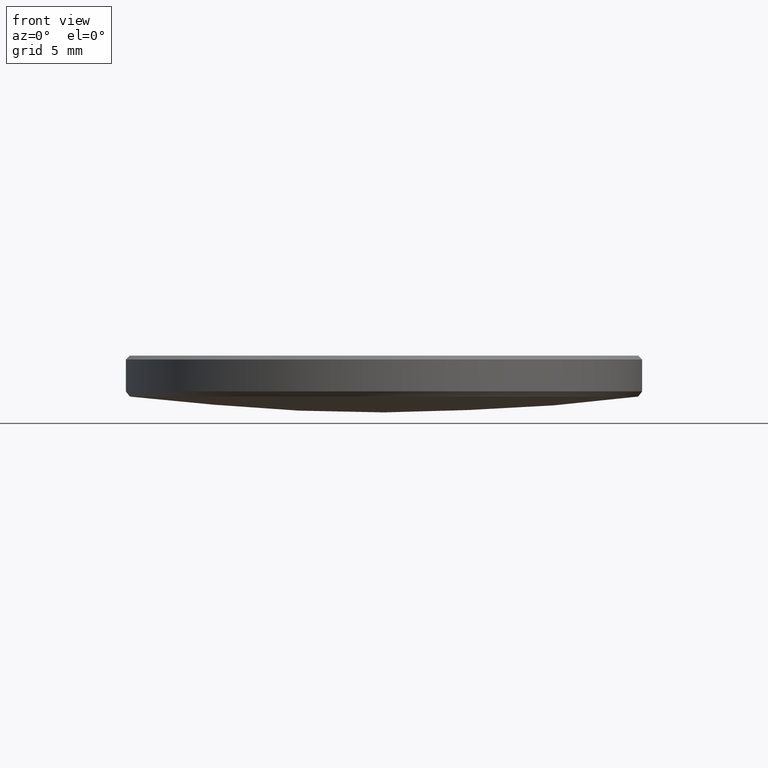
[diagram: clean part render]
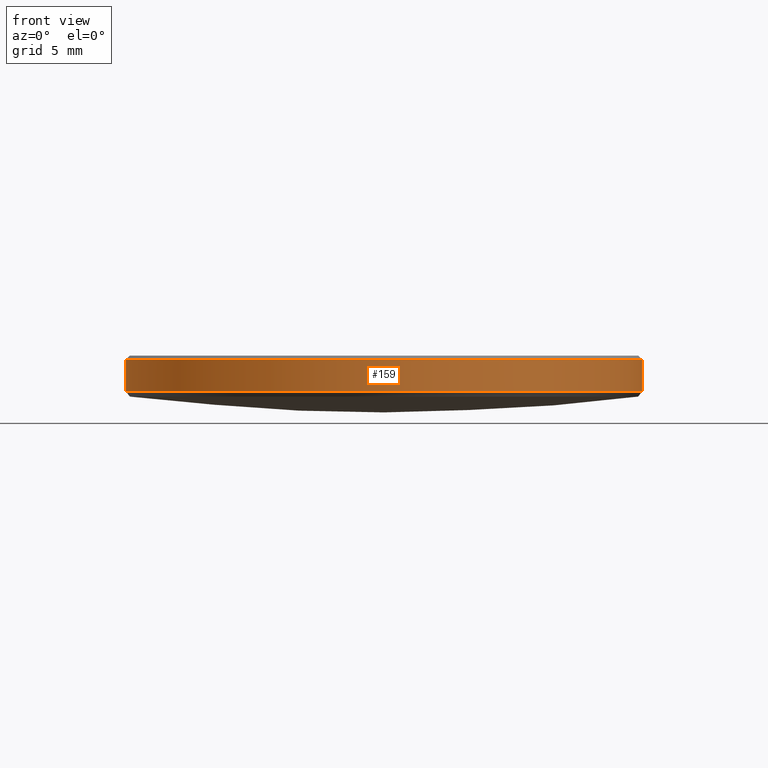
[diagram: same view with one face highlighted and labeled with its STEP entity id]
A machine part, front view. The second image highlights one B-rep face of the part: STEP entity #159.
In plain terms, the highlighted cylindrical surface (partial cylindrical patch) has radius 12.7 mm, axis along (-0, -0, -1).
Its self-contained STEP definition (entity closure, byte-faithful):
#3 = CARTESIAN_POINT ( 'NONE',  ( 12.69999999999999929, 1.555301434917138433E-15, 4.230902662384877999 ) ) ;
#7 = AXIS2_PLACEMENT_3D ( 'NONE', #263, #309, #165 ) ;
#10 = EDGE_LOOP ( 'NONE', ( #164, #255, #160, #68 ) ) ;
#16 = LINE ( 'NONE', #249, #227 ) ;
#36 = DIRECTION ( 'NONE',  ( -0.000000000000000000, -0.000000000000000000, -1.000000000000000000 ) ) ;
#45 = AXIS2_PLACEMENT_3D ( 'NONE', #196, #304, #228 ) ;
#47 = CARTESIAN_POINT ( 'NONE',  ( -12.69999999999999929, 0.000000000000000000, 4.230902662384877999 ) ) ;
#60 = CARTESIAN_POINT ( 'NONE',  ( -12.69999999999999929, 0.000000000000000000, 10.00000000000000000 ) ) ;
#62 = DIRECTION ( 'NONE',  ( -1.000000000000000000, 0.000000000000000000, 0.000000000000000000 ) ) ;
#66 = CARTESIAN_POINT ( 'NONE',  ( 0.000000000000000000, 0.000000000000000000, 4.230902662384877999 ) ) ;
#68 = ORIENTED_EDGE ( 'NONE', *, *, #174, .T. ) ;
#71 = VERTEX_POINT ( 'NONE', #124 ) ;
#76 = CIRCLE ( 'NONE', #45, 12.69999999999999929 ) ;
#112 = LINE ( 'NONE', #60, #272 ) ;
#118 = EDGE_CURVE ( 'NONE', #71, #187, #16, .T. ) ;
#124 = CARTESIAN_POINT ( 'NONE',  ( 12.69999999999999929, 1.555301434917138433E-15, 5.800000000000027356 ) ) ;
#133 = CYLINDRICAL_SURFACE ( 'NONE', #7, 12.69999999999999929 ) ;
#141 = AXIS2_PLACEMENT_3D ( 'NONE', #66, #312, #62 ) ;
#154 = CARTESIAN_POINT ( 'NONE',  ( -12.69999999999999929, 0.000000000000000000, 5.800000000000027356 ) ) ;
#159 = ADVANCED_FACE ( 'NONE', ( #232 ), #133, .T. ) ;
#160 = ORIENTED_EDGE ( 'NONE', *, *, #207, .T. ) ;
#164 = ORIENTED_EDGE ( 'NONE', *, *, #118, .F. ) ;
#165 = DIRECTION ( 'NONE',  ( -1.000000000000000000, 0.000000000000000000, 0.000000000000000000 ) ) ;
#174 = EDGE_CURVE ( 'NONE', #290, #187, #330, .T. ) ;
#187 = VERTEX_POINT ( 'NONE', #3 ) ;
#196 = CARTESIAN_POINT ( 'NONE',  ( 0.000000000000000000, 0.000000000000000000, 5.800000000000027356 ) ) ;
#207 = EDGE_CURVE ( 'NONE', #244, #290, #112, .T. ) ;
#227 = VECTOR ( 'NONE', #278, 1000.000000000000000 ) ;
#228 = DIRECTION ( 'NONE',  ( 1.000000000000000000, 0.000000000000000000, 0.000000000000000000 ) ) ;
#232 = FACE_OUTER_BOUND ( 'NONE', #10, .T. ) ;
#244 = VERTEX_POINT ( 'NONE', #154 ) ;
#249 = CARTESIAN_POINT ( 'NONE',  ( 12.69999999999999929, 1.555301434917138433E-15, 10.00000000000000000 ) ) ;
#255 = ORIENTED_EDGE ( 'NONE', *, *, #273, .T. ) ;
#263 = CARTESIAN_POINT ( 'NONE',  ( 0.000000000000000000, 0.000000000000000000, 10.00000000000000000 ) ) ;
#272 = VECTOR ( 'NONE', #36, 1000.000000000000000 ) ;
#273 = EDGE_CURVE ( 'NONE', #71, #244, #76, .T. ) ;
#278 = DIRECTION ( 'NONE',  ( -0.000000000000000000, -0.000000000000000000, -1.000000000000000000 ) ) ;
#290 = VERTEX_POINT ( 'NONE', #47 ) ;
#304 = DIRECTION ( 'NONE',  ( 0.000000000000000000, 0.000000000000000000, -1.000000000000000000 ) ) ;
#309 = DIRECTION ( 'NONE',  ( -0.000000000000000000, -0.000000000000000000, -1.000000000000000000 ) ) ;
#312 = DIRECTION ( 'NONE',  ( -0.000000000000000000, -0.000000000000000000, 1.000000000000000000 ) ) ;
#330 = CIRCLE ( 'NONE', #141, 12.69999999999999929 ) ;